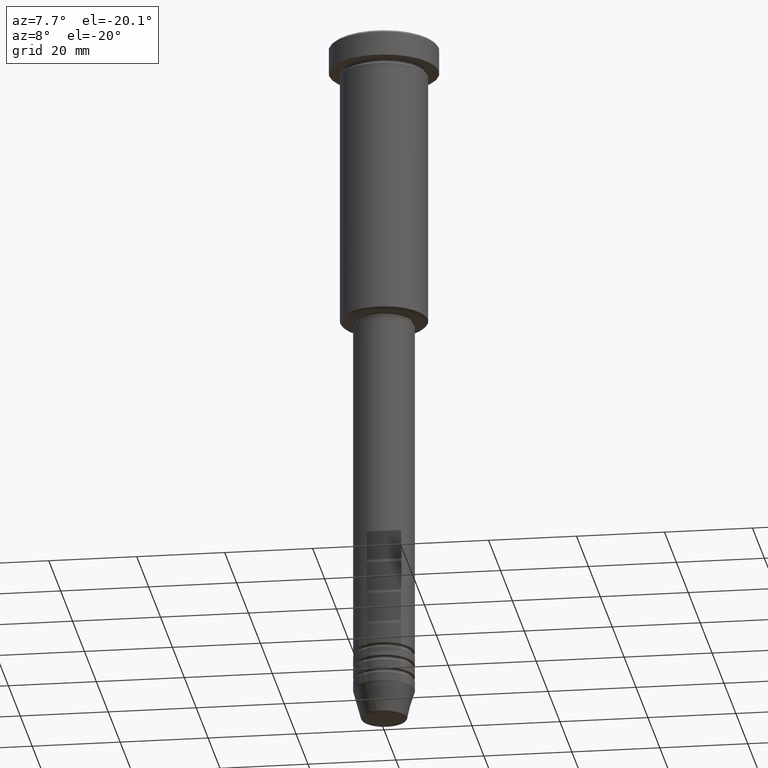
[diagram: clean part render]
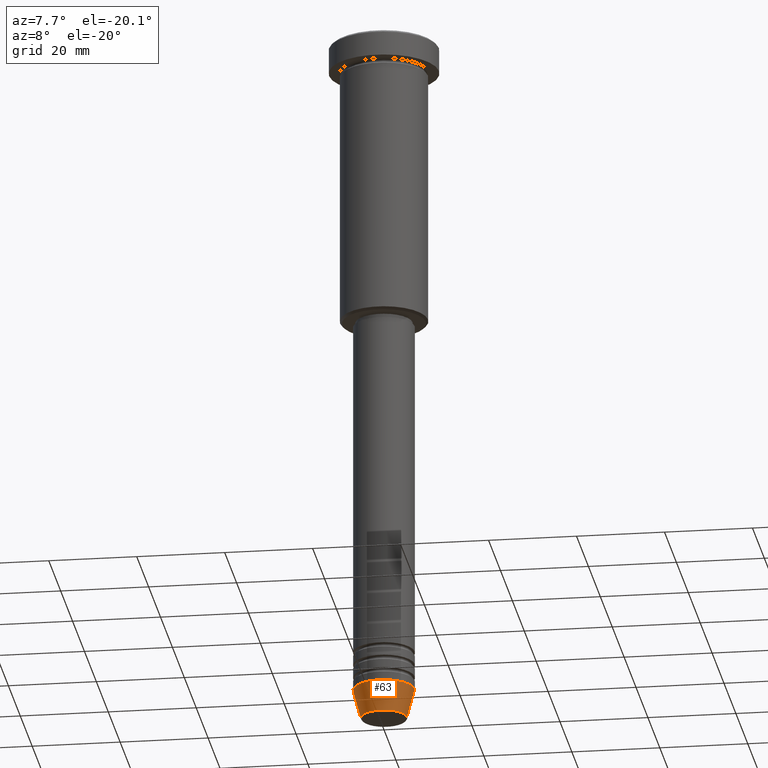
[diagram: same view with one face highlighted and labeled with its STEP entity id]
A machine part, auxiliary view. The second image highlights one B-rep face of the part: STEP entity #63.
In plain terms, the highlighted conical surface has half-angle 15 deg.
Its self-contained STEP definition (entity closure, byte-faithful):
#62 = VERTEX_POINT ( 'NONE', #78 ) ;
#63 = ADVANCED_FACE ( 'NONE', ( #551 ), #476, .T. ) ;
#68 = CARTESIAN_POINT ( 'NONE',  ( 0.000000000000000000, 0.000000000000000000, -154.0000000000000000 ) ) ;
#78 = CARTESIAN_POINT ( 'NONE',  ( 7.000000000000000000, 0.000000000000000000, -154.0000000000000000 ) ) ;
#112 = ORIENTED_EDGE ( 'NONE', *, *, #748, .T. ) ;
#113 = AXIS2_PLACEMENT_3D ( 'NONE', #68, #140, #255 ) ;
#139 = EDGE_CURVE ( 'NONE', #431, #389, #579, .T. ) ;
#140 = DIRECTION ( 'NONE',  ( -0.000000000000000000, -0.000000000000000000, 1.000000000000000000 ) ) ;
#186 = ORIENTED_EDGE ( 'NONE', *, *, #470, .T. ) ;
#208 = ORIENTED_EDGE ( 'NONE', *, *, #139, .F. ) ;
#245 = AXIS2_PLACEMENT_3D ( 'NONE', #570, #352, #280 ) ;
#255 = DIRECTION ( 'NONE',  ( 1.000000000000000000, 0.000000000000000000, 0.000000000000000000 ) ) ;
#280 = DIRECTION ( 'NONE',  ( 1.000000000000000000, 0.000000000000000000, 0.000000000000000000 ) ) ;
#305 = EDGE_CURVE ( 'NONE', #389, #62, #518, .T. ) ;
#345 = DIRECTION ( 'NONE',  ( -0.000000000000000000, -0.000000000000000000, 1.000000000000000000 ) ) ;
#349 = ORIENTED_EDGE ( 'NONE', *, *, #305, .F. ) ;
#352 = DIRECTION ( 'NONE',  ( -0.000000000000000000, -0.000000000000000000, 1.000000000000000000 ) ) ;
#358 = AXIS2_PLACEMENT_3D ( 'NONE', #710, #345, #988 ) ;
#389 = VERTEX_POINT ( 'NONE', #972 ) ;
#402 = CARTESIAN_POINT ( 'NONE',  ( -5.223655072137196598, 7.484830028987062146E-16, -160.6294095225512137 ) ) ;
#431 = VERTEX_POINT ( 'NONE', #402 ) ;
#452 = EDGE_LOOP ( 'NONE', ( #208, #186, #112, #349 ) ) ;
#470 = EDGE_CURVE ( 'NONE', #431, #1168, #840, .T. ) ;
#476 = CONICAL_SURFACE ( 'NONE', #113, 7.000000000000000000, 0.2617993877991500740 ) ;
#480 = CARTESIAN_POINT ( 'NONE',  ( -7.000000000000000000, 8.572527594031473190E-16, -154.0000000000000000 ) ) ;
#518 = CIRCLE ( 'NONE', #245, 7.000000000000000000 ) ;
#551 = FACE_OUTER_BOUND ( 'NONE', #452, .T. ) ;
#570 = CARTESIAN_POINT ( 'NONE',  ( 0.000000000000000000, 0.000000000000000000, -154.0000000000000000 ) ) ;
#579 = LINE ( 'NONE', #480, #739 ) ;
#662 = DIRECTION ( 'NONE',  ( -0.2588190451025213501, 3.169619151431772337E-17, 0.9659258262890680902 ) ) ;
#710 = CARTESIAN_POINT ( 'NONE',  ( 0.000000000000000000, 0.000000000000000000, -160.6294095225512137 ) ) ;
#739 = VECTOR ( 'NONE', #662, 1000.000000000000000 ) ;
#747 = LINE ( 'NONE', #758, #808 ) ;
#748 = EDGE_CURVE ( 'NONE', #1168, #62, #747, .T. ) ;
#758 = CARTESIAN_POINT ( 'NONE',  ( 7.000000000000000000, 0.000000000000000000, -154.0000000000000000 ) ) ;
#808 = VECTOR ( 'NONE', #1109, 1000.000000000000000 ) ;
#840 = CIRCLE ( 'NONE', #358, 5.223655072137196598 ) ;
#847 = CARTESIAN_POINT ( 'NONE',  ( 5.223655072137196598, 0.000000000000000000, -160.6294095225512137 ) ) ;
#972 = CARTESIAN_POINT ( 'NONE',  ( -7.000000000000000000, 8.572527594031473190E-16, -154.0000000000000000 ) ) ;
#988 = DIRECTION ( 'NONE',  ( 1.000000000000000000, 0.000000000000000000, 0.000000000000000000 ) ) ;
#1109 = DIRECTION ( 'NONE',  ( 0.2588190451025213501, 0.000000000000000000, 0.9659258262890680902 ) ) ;
#1168 = VERTEX_POINT ( 'NONE', #847 ) ;